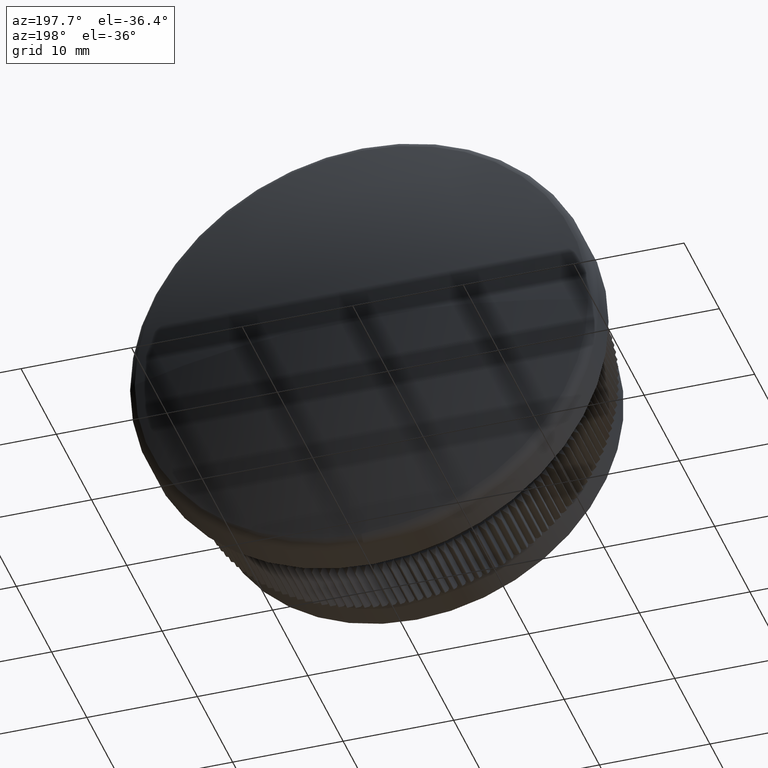
[diagram: clean part render]
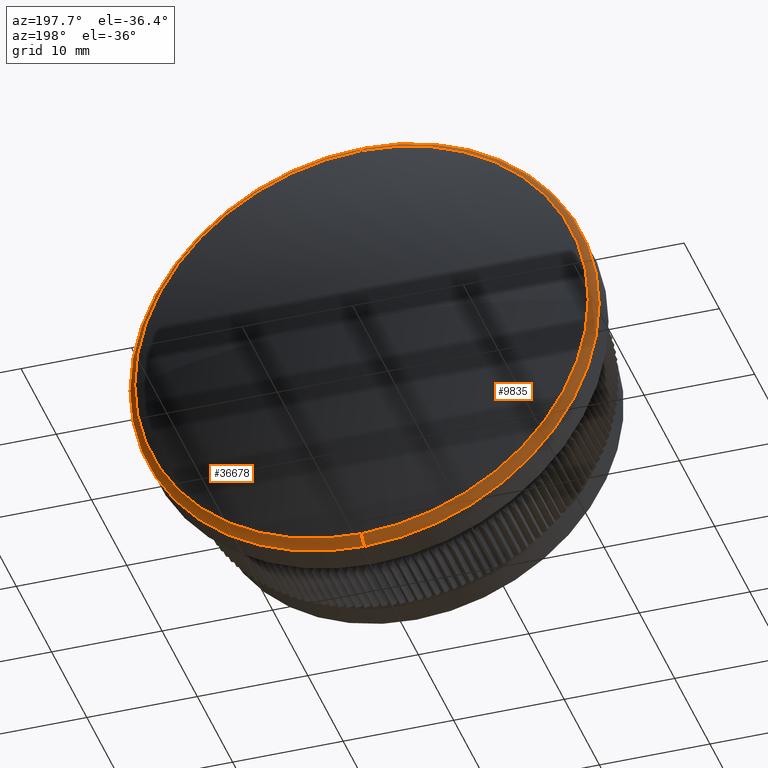
[diagram: same view with one multi-face feature highlighted, each face labeled with its STEP entity id]
A machine part, auxiliary view. The highlighted faces form ONE feature: a constant-radius fillet chain: 2 tangent blend faces with common blend radius 1 mm. The faces share edges in the B-rep.
Their STEP definitions:
[1] entity #9835 (Torus):
#520 = AXIS2_PLACEMENT_3D ( 'NONE', #7388, #21320, #41465 ) ;
#1430 = CIRCLE ( 'NONE', #12645, 1.000000000000000900 ) ;
#1627 = CARTESIAN_POINT ( 'NONE',  ( 2.596251214192388800E-015, 15.18611928975797200, 21.19999999999999900 ) ) ;
#5826 = VERTEX_POINT ( 'NONE', #18334 ) ;
#6629 = CARTESIAN_POINT ( 'NONE',  ( 2.554583091114194700E-015, 16.13370289891058500, 20.51950790861159700 ) ) ;
#7136 = CARTESIAN_POINT ( 'NONE',  ( 0.0000000000000000000, 15.18611928975797200, -21.19999999999999900 ) ) ;
#7369 = DIRECTION ( 'NONE',  ( 0.0000000000000000000, 0.0000000000000000000, 1.000000000000000000 ) ) ;
#7388 = CARTESIAN_POINT ( 'NONE',  ( 0.0000000000000000000, 16.13370289891058500, 0.0000000000000000000 ) ) ;
#7844 = FACE_OUTER_BOUND ( 'NONE', #26964, .T. ) ;
#8845 = EDGE_CURVE ( 'NONE', #13353, #5826, #42479, .T. ) ;
#9835 = ADVANCED_FACE ( 'NONE', ( #7844 ), #34404, .T. ) ;
#10555 = EDGE_CURVE ( 'NONE', #13353, #31616, #40855, .T. ) ;
#10900 = CARTESIAN_POINT ( 'NONE',  ( 0.0000000000000000000, 15.18611928975797200, 0.0000000000000000000 ) ) ;
#12645 = AXIS2_PLACEMENT_3D ( 'NONE', #17415, #41487, #27890 ) ;
#12743 = ORIENTED_EDGE ( 'NONE', *, *, #10555, .T. ) ;
#13346 = CARTESIAN_POINT ( 'NONE',  ( 0.0000000000000000000, 16.13370289891058500, 0.0000000000000000000 ) ) ;
#13353 = VERTEX_POINT ( 'NONE', #22797 ) ;
#14385 = CARTESIAN_POINT ( 'NONE',  ( 0.0000000000000000000, 15.18611928975797200, -20.19999999999999900 ) ) ;
#15376 = AXIS2_PLACEMENT_3D ( 'NONE', #10900, #35096, #20708 ) ;
#17415 = CARTESIAN_POINT ( 'NONE',  ( 2.473786534277653600E-015, 15.18611928975797200, 20.19999999999999900 ) ) ;
#17583 = CIRCLE ( 'NONE', #15376, 21.19999999999999900 ) ;
#18172 = EDGE_CURVE ( 'NONE', #41242, #31616, #17583, .T. ) ;
#18334 = CARTESIAN_POINT ( 'NONE',  ( -20.51950790861158000, 16.13370289891058100, 2.512914968035997800E-015 ) ) ;
#20296 = DIRECTION ( 'NONE',  ( -0.0000000000000000000, -1.000000000000000000, -0.0000000000000000000 ) ) ;
#20708 = DIRECTION ( 'NONE',  ( 0.0000000000000000000, 0.0000000000000000000, -1.000000000000000000 ) ) ;
#21320 = DIRECTION ( 'NONE',  ( 0.0000000000000000000, 1.000000000000000000, 0.0000000000000000000 ) ) ;
#22797 = CARTESIAN_POINT ( 'NONE',  ( 0.0000000000000000000, 16.13370289891058500, -20.51950790861159700 ) ) ;
#23327 = EDGE_CURVE ( 'NONE', #39842, #41242, #1430, .T. ) ;
#24494 = DIRECTION ( 'NONE',  ( -1.000000000000000000, 0.0000000000000000000, 0.0000000000000000000 ) ) ;
#24858 = ORIENTED_EDGE ( 'NONE', *, *, #40598, .F. ) ;
#26964 = EDGE_LOOP ( 'NONE', ( #42144, #24858, #28586, #12743, #41761 ) ) ;
#27394 = DIRECTION ( 'NONE',  ( 0.0000000000000000000, 0.0000000000000000000, -1.000000000000000000 ) ) ;
#27546 = DIRECTION ( 'NONE',  ( 0.0000000000000000000, 1.000000000000000000, 0.0000000000000000000 ) ) ;
#27890 = DIRECTION ( 'NONE',  ( -1.224646799147353500E-016, 0.0000000000000000000, -1.000000000000000000 ) ) ;
#28586 = ORIENTED_EDGE ( 'NONE', *, *, #8845, .F. ) ;
#30346 = CIRCLE ( 'NONE', #520, 20.51950790861159700 ) ;
#31090 = AXIS2_PLACEMENT_3D ( 'NONE', #14385, #24494, #7369 ) ;
#31616 = VERTEX_POINT ( 'NONE', #7136 ) ;
#34400 = DIRECTION ( 'NONE',  ( 0.0000000000000000000, 0.0000000000000000000, -1.000000000000000000 ) ) ;
#34404 = TOROIDAL_SURFACE ( 'NONE', #40567, 20.19999999999999900, 1.000000000000000000 ) ;
#35096 = DIRECTION ( 'NONE',  ( -0.0000000000000000000, -1.000000000000000000, -0.0000000000000000000 ) ) ;
#37349 = AXIS2_PLACEMENT_3D ( 'NONE', #13346, #27546, #27394 ) ;
#39842 = VERTEX_POINT ( 'NONE', #6629 ) ;
#40567 = AXIS2_PLACEMENT_3D ( 'NONE', #44638, #20296, #34400 ) ;
#40598 = EDGE_CURVE ( 'NONE', #5826, #39842, #30346, .T. ) ;
#40855 = CIRCLE ( 'NONE', #31090, 1.000000000000000900 ) ;
#41242 = VERTEX_POINT ( 'NONE', #1627 ) ;
#41465 = DIRECTION ( 'NONE',  ( 0.0000000000000000000, 0.0000000000000000000, -1.000000000000000000 ) ) ;
#41487 = DIRECTION ( 'NONE',  ( 1.000000000000000000, 0.0000000000000000000, -1.224646799147353500E-016 ) ) ;
#41761 = ORIENTED_EDGE ( 'NONE', *, *, #18172, .F. ) ;
#42144 = ORIENTED_EDGE ( 'NONE', *, *, #23327, .F. ) ;
#42479 = CIRCLE ( 'NONE', #37349, 20.51950790861159700 ) ;
#44638 = CARTESIAN_POINT ( 'NONE',  ( 0.0000000000000000000, 15.18611928975797200, 0.0000000000000000000 ) ) ;
[2] entity #36678 (Torus):
#74 = CARTESIAN_POINT ( 'NONE',  ( 0.0000000000000000000, 16.13370289891058500, 0.0000000000000000000 ) ) ;
#1430 = CIRCLE ( 'NONE', #12645, 1.000000000000000900 ) ;
#1627 = CARTESIAN_POINT ( 'NONE',  ( 2.596251214192388800E-015, 15.18611928975797200, 21.19999999999999900 ) ) ;
#2138 = ORIENTED_EDGE ( 'NONE', *, *, #33016, .F. ) ;
#6629 = CARTESIAN_POINT ( 'NONE',  ( 2.554583091114194700E-015, 16.13370289891058500, 20.51950790861159700 ) ) ;
#7136 = CARTESIAN_POINT ( 'NONE',  ( 0.0000000000000000000, 15.18611928975797200, -21.19999999999999900 ) ) ;
#7369 = DIRECTION ( 'NONE',  ( 0.0000000000000000000, 0.0000000000000000000, 1.000000000000000000 ) ) ;
#7765 = EDGE_CURVE ( 'NONE', #44792, #13353, #19851, .T. ) ;
#8904 = DIRECTION ( 'NONE',  ( -0.0000000000000000000, -1.000000000000000000, -0.0000000000000000000 ) ) ;
#10303 = TOROIDAL_SURFACE ( 'NONE', #10721, 20.19999999999999900, 1.000000000000000000 ) ;
#10555 = EDGE_CURVE ( 'NONE', #13353, #31616, #40855, .T. ) ;
#10721 = AXIS2_PLACEMENT_3D ( 'NONE', #41624, #15161, #18744 ) ;
#12089 = ORIENTED_EDGE ( 'NONE', *, *, #7765, .F. ) ;
#12311 = CARTESIAN_POINT ( 'NONE',  ( 0.0000000000000000000, 15.18611928975797200, 0.0000000000000000000 ) ) ;
#12645 = AXIS2_PLACEMENT_3D ( 'NONE', #17415, #41487, #27890 ) ;
#13353 = VERTEX_POINT ( 'NONE', #22797 ) ;
#13995 = DIRECTION ( 'NONE',  ( 0.0000000000000000000, 0.0000000000000000000, -1.000000000000000000 ) ) ;
#14385 = CARTESIAN_POINT ( 'NONE',  ( 0.0000000000000000000, 15.18611928975797200, -20.19999999999999900 ) ) ;
#15161 = DIRECTION ( 'NONE',  ( -0.0000000000000000000, -1.000000000000000000, -0.0000000000000000000 ) ) ;
#16567 = ORIENTED_EDGE ( 'NONE', *, *, #23327, .T. ) ;
#17109 = CIRCLE ( 'NONE', #35485, 21.19999999999999900 ) ;
#17415 = CARTESIAN_POINT ( 'NONE',  ( 2.473786534277653600E-015, 15.18611928975797200, 20.19999999999999900 ) ) ;
#18658 = CIRCLE ( 'NONE', #36940, 20.51950790861159700 ) ;
#18744 = DIRECTION ( 'NONE',  ( 0.0000000000000000000, 0.0000000000000000000, -1.000000000000000000 ) ) ;
#19361 = DIRECTION ( 'NONE',  ( 0.0000000000000000000, 0.0000000000000000000, -1.000000000000000000 ) ) ;
#19851 = CIRCLE ( 'NONE', #24568, 20.51950790861159700 ) ;
#20261 = CARTESIAN_POINT ( 'NONE',  ( 20.51950790861158000, 16.13370289891058100, 0.0000000000000000000 ) ) ;
#22797 = CARTESIAN_POINT ( 'NONE',  ( 0.0000000000000000000, 16.13370289891058500, -20.51950790861159700 ) ) ;
#23327 = EDGE_CURVE ( 'NONE', #39842, #41242, #1430, .T. ) ;
#23937 = CARTESIAN_POINT ( 'NONE',  ( 0.0000000000000000000, 16.13370289891058500, 0.0000000000000000000 ) ) ;
#24494 = DIRECTION ( 'NONE',  ( -1.000000000000000000, 0.0000000000000000000, 0.0000000000000000000 ) ) ;
#24568 = AXIS2_PLACEMENT_3D ( 'NONE', #74, #31094, #13995 ) ;
#27800 = ORIENTED_EDGE ( 'NONE', *, *, #10555, .F. ) ;
#27890 = DIRECTION ( 'NONE',  ( -1.224646799147353500E-016, 0.0000000000000000000, -1.000000000000000000 ) ) ;
#30313 = DIRECTION ( 'NONE',  ( 0.0000000000000000000, 1.000000000000000000, 0.0000000000000000000 ) ) ;
#31090 = AXIS2_PLACEMENT_3D ( 'NONE', #14385, #24494, #7369 ) ;
#31094 = DIRECTION ( 'NONE',  ( 0.0000000000000000000, 1.000000000000000000, 0.0000000000000000000 ) ) ;
#31616 = VERTEX_POINT ( 'NONE', #7136 ) ;
#31859 = EDGE_CURVE ( 'NONE', #31616, #41242, #17109, .T. ) ;
#32483 = FACE_OUTER_BOUND ( 'NONE', #44164, .T. ) ;
#33016 = EDGE_CURVE ( 'NONE', #39842, #44792, #18658, .T. ) ;
#35485 = AXIS2_PLACEMENT_3D ( 'NONE', #12311, #8904, #19361 ) ;
#36678 = ADVANCED_FACE ( 'NONE', ( #32483 ), #10303, .T. ) ;
#36940 = AXIS2_PLACEMENT_3D ( 'NONE', #23937, #30313, #40709 ) ;
#39842 = VERTEX_POINT ( 'NONE', #6629 ) ;
#40709 = DIRECTION ( 'NONE',  ( 0.0000000000000000000, 0.0000000000000000000, -1.000000000000000000 ) ) ;
#40855 = CIRCLE ( 'NONE', #31090, 1.000000000000000900 ) ;
#41242 = VERTEX_POINT ( 'NONE', #1627 ) ;
#41487 = DIRECTION ( 'NONE',  ( 1.000000000000000000, 0.0000000000000000000, -1.224646799147353500E-016 ) ) ;
#41624 = CARTESIAN_POINT ( 'NONE',  ( 0.0000000000000000000, 15.18611928975797200, 0.0000000000000000000 ) ) ;
#44164 = EDGE_LOOP ( 'NONE', ( #2138, #16567, #44673, #27800, #12089 ) ) ;
#44673 = ORIENTED_EDGE ( 'NONE', *, *, #31859, .F. ) ;
#44792 = VERTEX_POINT ( 'NONE', #20261 ) ;